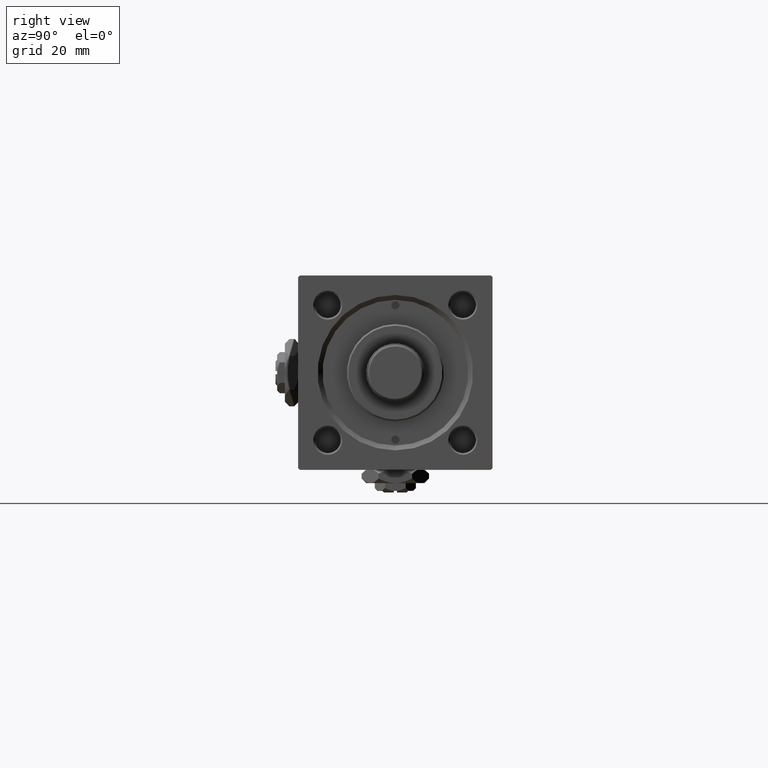
[diagram: clean part render]
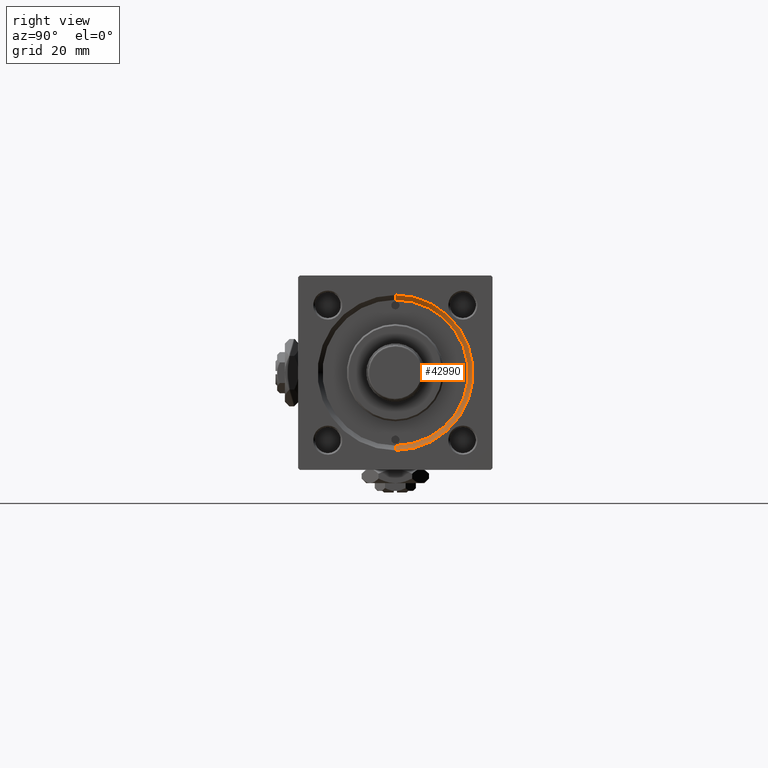
[diagram: same view with one face highlighted and labeled with its STEP entity id]
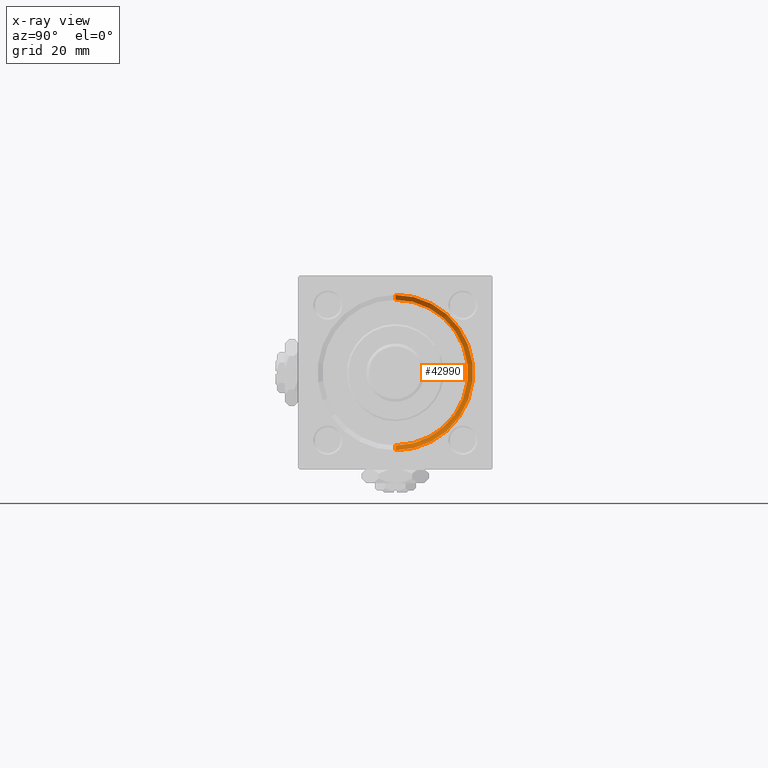
[diagram: x-ray of the same camera — body ghosted, the highlighted face saturated]
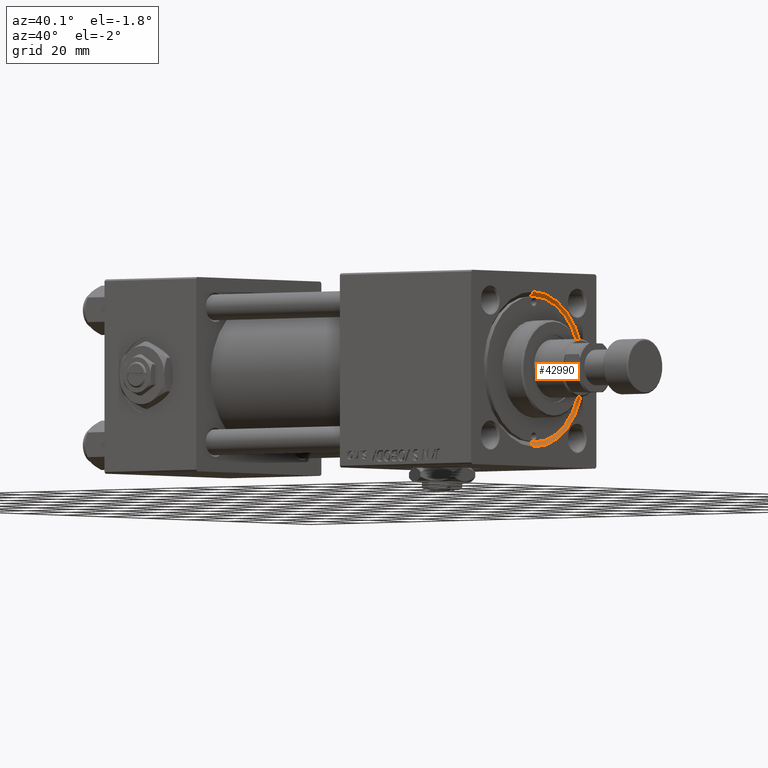
[diagram: same view with one face highlighted and labeled with its STEP entity id]
A machine part, right view. The second image highlights one B-rep face of the part: STEP entity #42990.
The next image is the same camera in x-ray: the body ghosted, the highlighted face saturated — about 0% of this face is hidden behind the body in this view.
A second angle (auxiliary view) of the same face is appended — the face is thin or edge-on in the first view.
In plain terms, the highlighted conical surface has half-angle 45 deg.
Its self-contained STEP definition (entity closure, byte-faithful):
#1054 = VERTEX_POINT ( 'NONE', #16772 ) ;
#1542 = AXIS2_PLACEMENT_3D ( 'NONE', #6049, #43626, #14050 ) ;
#2112 = CARTESIAN_POINT ( 'NONE',  ( 146.4999999999999432, 2.755455298081545172E-15, 22.50000000000000355 ) ) ;
#2809 = FACE_OUTER_BOUND ( 'NONE', #17454, .T. ) ;
#4020 = ORIENTED_EDGE ( 'NONE', *, *, #41671, .F. ) ;
#4660 = VECTOR ( 'NONE', #33549, 1000.000000000000000 ) ;
#4793 = ORIENTED_EDGE ( 'NONE', *, *, #30652, .T. ) ;
#4963 = CONICAL_SURFACE ( 'NONE', #1542, 22.50000000000000355, 0.7853981633974415066 ) ;
#5056 = DIRECTION ( 'NONE',  ( 0.000000000000000000, 0.000000000000000000, 1.000000000000000000 ) ) ;
#6049 = CARTESIAN_POINT ( 'NONE',  ( 146.4999999999999432, 0.000000000000000000, 0.000000000000000000 ) ) ;
#14050 = DIRECTION ( 'NONE',  ( 0.000000000000000000, 0.000000000000000000, -1.000000000000000000 ) ) ;
#16261 = ORIENTED_EDGE ( 'NONE', *, *, #19513, .F. ) ;
#16772 = CARTESIAN_POINT ( 'NONE',  ( 148.0000000000000000, 0.000000000000000000, -24.00000000000003908 ) ) ;
#17454 = EDGE_LOOP ( 'NONE', ( #4020, #16261, #4793, #31266 ) ) ;
#19185 = DIRECTION ( 'NONE',  ( -1.000000000000000000, 0.000000000000000000, -0.000000000000000000 ) ) ;
#19513 = EDGE_CURVE ( 'NONE', #36214, #36928, #29116, .T. ) ;
#21073 = DIRECTION ( 'NONE',  ( 1.000000000000000000, 0.000000000000000000, 0.000000000000000000 ) ) ;
#26151 = CARTESIAN_POINT ( 'NONE',  ( 148.0000000000000000, 0.000000000000000000, 0.000000000000000000 ) ) ;
#26232 = AXIS2_PLACEMENT_3D ( 'NONE', #26151, #19185, #47995 ) ;
#27618 = CARTESIAN_POINT ( 'NONE',  ( 146.4999999999999432, 2.755455298081545172E-15, 22.50000000000000355 ) ) ;
#29116 = CIRCLE ( 'NONE', #38461, 22.50000000000000355 ) ;
#30395 = LINE ( 'NONE', #2112, #40704 ) ;
#30652 = EDGE_CURVE ( 'NONE', #36214, #1054, #46338, .T. ) ;
#31266 = ORIENTED_EDGE ( 'NONE', *, *, #45955, .F. ) ;
#33280 = CARTESIAN_POINT ( 'NONE',  ( 148.0000000000000000, 2.939152317953652628E-15, 24.00000000000003908 ) ) ;
#33549 = DIRECTION ( 'NONE',  ( 0.7071067811865524577, 0.000000000000000000, -0.7071067811865426878 ) ) ;
#36214 = VERTEX_POINT ( 'NONE', #39279 ) ;
#36729 = VERTEX_POINT ( 'NONE', #33280 ) ;
#36928 = VERTEX_POINT ( 'NONE', #27618 ) ;
#37805 = CARTESIAN_POINT ( 'NONE',  ( 146.4999999999999432, 0.000000000000000000, -22.50000000000000355 ) ) ;
#38461 = AXIS2_PLACEMENT_3D ( 'NONE', #45346, #21073, #5056 ) ;
#39279 = CARTESIAN_POINT ( 'NONE',  ( 146.4999999999999432, 0.000000000000000000, -22.50000000000000355 ) ) ;
#39851 = CIRCLE ( 'NONE', #26232, 24.00000000000003908 ) ;
#40704 = VECTOR ( 'NONE', #47447, 1000.000000000000000 ) ;
#41671 = EDGE_CURVE ( 'NONE', #36928, #36729, #30395, .T. ) ;
#42990 = ADVANCED_FACE ( 'NONE', ( #2809 ), #4963, .F. ) ;
#43626 = DIRECTION ( 'NONE',  ( 1.000000000000000000, 0.000000000000000000, 0.000000000000000000 ) ) ;
#45346 = CARTESIAN_POINT ( 'NONE',  ( 146.4999999999999432, 0.000000000000000000, 0.000000000000000000 ) ) ;
#45955 = EDGE_CURVE ( 'NONE', #36729, #1054, #39851, .T. ) ;
#46338 = LINE ( 'NONE', #37805, #4660 ) ;
#47447 = DIRECTION ( 'NONE',  ( 0.7071067811865524577, 8.659560562354874926E-17, 0.7071067811865426878 ) ) ;
#47995 = DIRECTION ( 'NONE',  ( 0.000000000000000000, 0.000000000000000000, 1.000000000000000000 ) ) ;